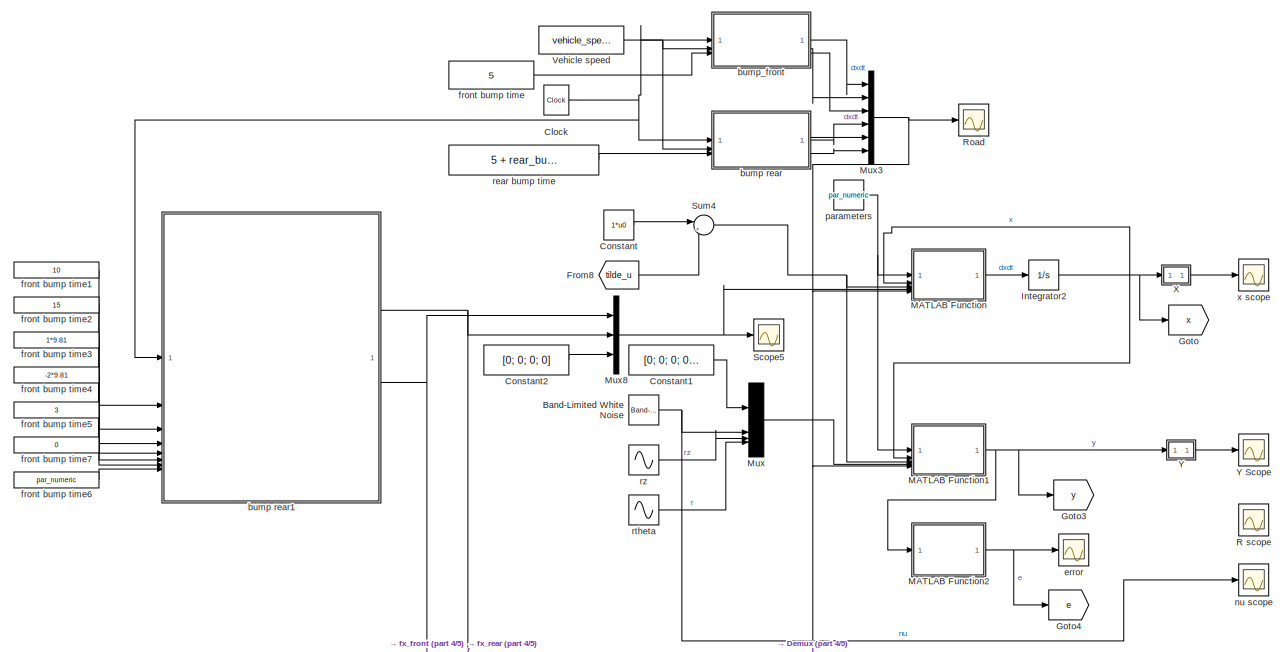
[diagram: root canvas - part 1/5, top left region]
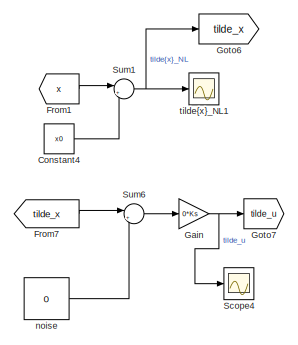
[diagram: root canvas - part 2/5, top right region]
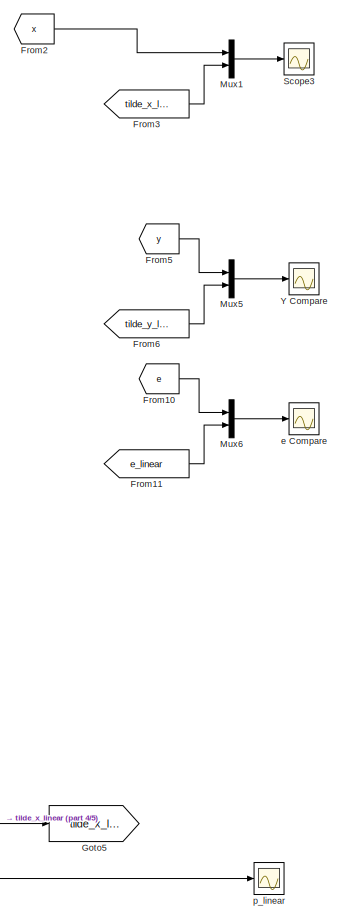
[diagram: root canvas - part 3/5, middle right region]
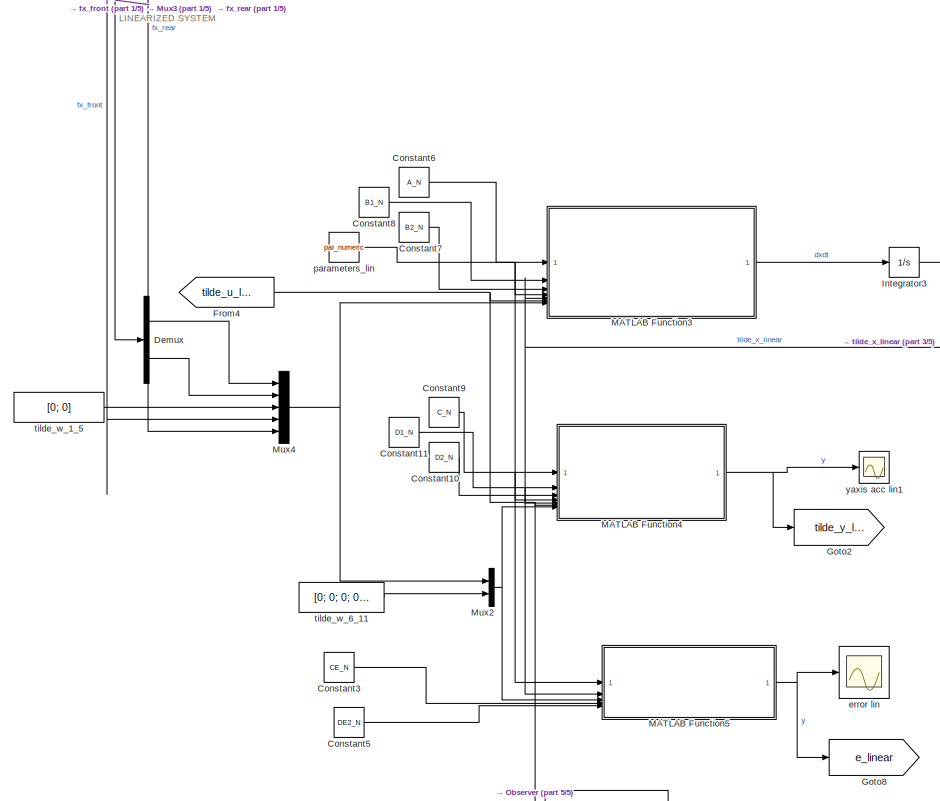
[diagram: root canvas - part 4/5, central region]
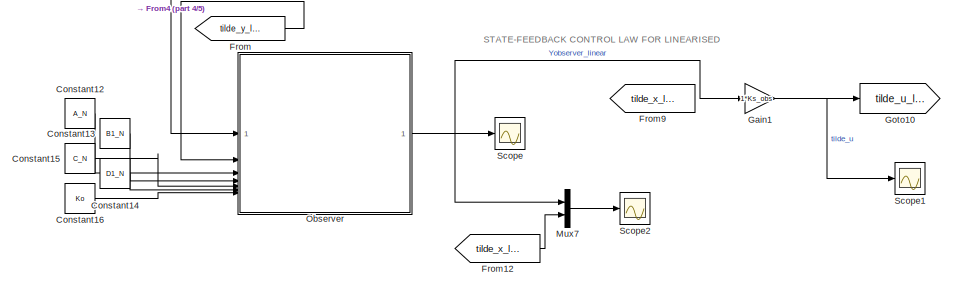
[diagram: root canvas - part 5/5, bottom center region]
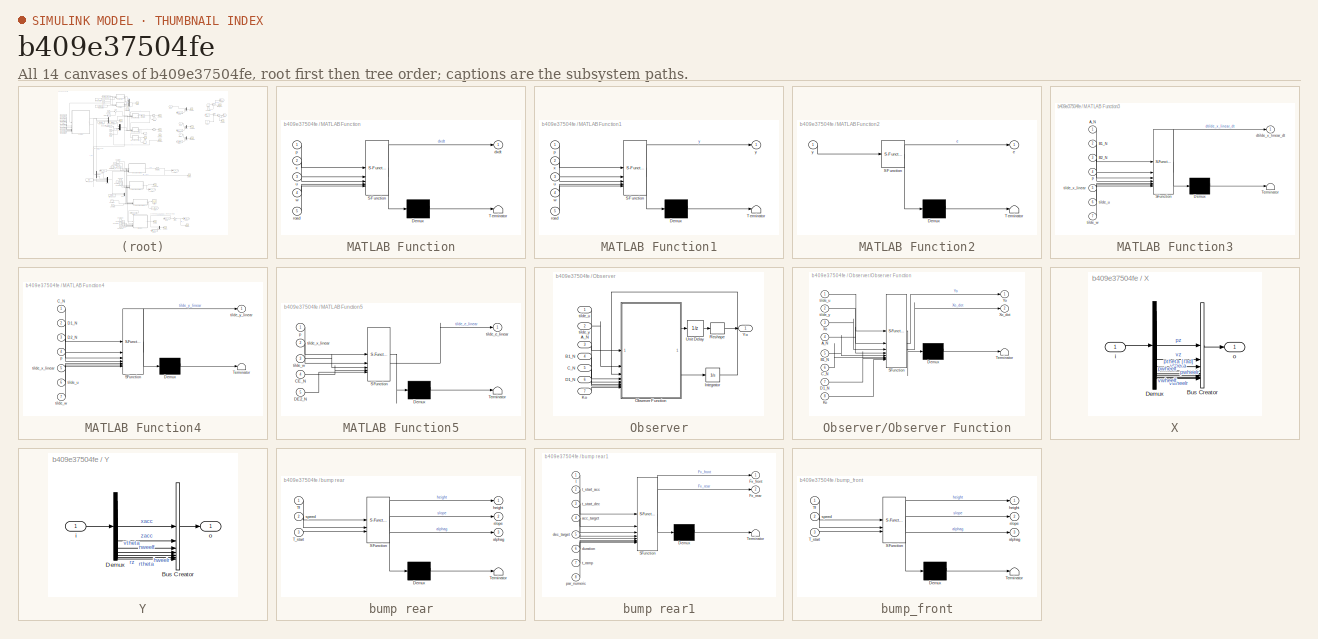
[diagram: thumbnail index - all 14 canvases of the model, root first then tree order]
MODEL slx_b409e37504fe
KIND model
CONFIG AbsTol = auto
CONFIG EnableMultiTasking = off
CONFIG FixedStep = auto
CONFIG MaxStep = auto
CONFIG MinStep = auto
CONFIG RelTol = 1e-3
CONFIG SampleTimeConstraint = Unconstrained
CONFIG SolverName = VariableStepAuto
CONFIG StartTime = 0.0
CONFIG StopTime = 25
BLOCK [Scope]  error lin
  ActiveDisplayYMaximum = 1
  ActiveDisplayYMinimum = -1
  DataLoggingVariableName = ScopeData8
  Floating = off
  GraphicalSettings = {"Style":{"BackgroundColor":[0.12941176470588237,0.12941176470588237,0.12941176470588237],"AxesColor":[0.07058823529411765,0.07058823529411765,0.07058823529411765],"LabelsColor":[0.8509803921568627,0.8509803921568627,0.8509803921568627],"PreserveColors":false,"Visible":[true,true],"LineStyle":["-","-"],"LineWidth":[1.5,1.5],"BarWidth":[0.9,0.9],"LineColor":["auto","auto"],"LineFaceAlpha":[1,1],"Li...<+2038ch>
  MultipleDisplayCache = [{"MaxYLimMag":1,"MaxYLimReal":1,"MinYLimMag":0,"MinYLimReal":-1,"PlotAsMagnitudePhase":false,"ShowGrid":true,"ShowLegend":true,"Title":"%<SignalLabel>","YLabel":""}]
  NumInputPorts = 1
  ScopeFrameLocation = window
  ShowLegend = on
  WasSavedAsWebScope = on
  WindowPosition = [0.000000,32.000000,1920.000000,1017.000000,]
BLOCK [Reference] Band-Limited White Noise  REF=simulink/Sources/Band-Limited
White Noise
  SourceBlock = simulink/Sources/Band-Limited\nWhite Noise
  SourceType = Band-Limited White Noise.
BLOCK [Clock] Clock
  DisplayTime = on
BLOCK [Constant] Constant
  Value = 1*u0
BLOCK [Constant] Constant1
  Value = [0; 0; 0; 0; 0; 0]
BLOCK [Constant] Constant10
  Value = D2_N
BLOCK [Constant] Constant11
  Value = D1_N
BLOCK [Constant] Constant12
  Value = A_N
BLOCK [Constant] Constant13
  Value = B1_N
BLOCK [Constant] Constant14
  Value = D1_N
BLOCK [Constant] Constant15
  Value = C_N
BLOCK [Constant] Constant16
  Value = Ko
BLOCK [Constant] Constant2
  Value = [0; 0; 0; 0]
BLOCK [Constant] Constant3
  Value = CE_N
BLOCK [Constant] Constant4
  Value = x0
BLOCK [Constant] Constant5
  Value = DE2_N
BLOCK [Constant] Constant6
  Value = A_N
BLOCK [Constant] Constant7
  Value = B2_N
BLOCK [Constant] Constant8
  Value = B1_N
BLOCK [Constant] Constant9
  Value = C_N
BLOCK [Demux] Demux
  Outputs = 6
BLOCK [From] From
  GotoTag = tilde_y_linear
BLOCK [From] From1
  GotoTag = x
BLOCK [From] From10
  GotoTag = e
BLOCK [From] From11
  GotoTag = e_linear
BLOCK [From] From12
  GotoTag = tilde_x_linear
BLOCK [From] From2
  GotoTag = x
BLOCK [From] From3
  GotoTag = tilde_x_linear
BLOCK [From] From4
  GotoTag = tilde_u_linear
BLOCK [From] From5
  GotoTag = y
BLOCK [From] From6
  GotoTag = tilde_y_linear
BLOCK [From] From7
  GotoTag = tilde_x
BLOCK [From] From8
  GotoTag = tilde_u
BLOCK [From] From9
  GotoTag = tilde_x_linear
BLOCK [Gain] Gain
  Gain = 0*Ks
  Multiplication = Matrix(K*u)
BLOCK [Gain] Gain1
  Gain = 1*Ks_obs
  Multiplication = Matrix(K*u)
BLOCK [Goto] Goto
  GotoTag = x
BLOCK [Goto] Goto10
  GotoTag = tilde_u_linear
BLOCK [Goto] Goto2
  GotoTag = tilde_y_linear
BLOCK [Goto] Goto3
  GotoTag = y
BLOCK [Goto] Goto4
  GotoTag = e
BLOCK [Goto] Goto5
  GotoTag = tilde_x_linear
BLOCK [Goto] Goto6
  GotoTag = tilde_x
BLOCK [Goto] Goto7
  GotoTag = tilde_u
BLOCK [Goto] Goto8
  GotoTag = e_linear
BLOCK [Integrator] Integrator2
  InitialCondition = x0
BLOCK [Integrator] Integrator3
  InitialCondition = x0_lin
BLOCK [SubSystem] MATLAB Function
  ErrorFcn = Stateflow.Translate.translate
  PermitHierarchicalResolution = ExplicitOnly
  SFBlockType = MATLAB Function
  TreatAsAtomicUnit = on
BLOCK [Demux] MATLAB Function/ Demux 
  Outputs = 1
BLOCK [S-Function] MATLAB Function/ SFunction 
  EnableBusSupport = off
  FunctionName = sf_sfun
  PortCounts = [5 2]
  SFcnIsStateOwnerBlock = off
  SFunctionDeploymentMode = off
  Tag = Stateflow S-Function 2
BLOCK [Terminator] MATLAB Function/ Terminator 
BLOCK [Outport] MATLAB Function/dxdt
BLOCK [Inport] MATLAB Function/p
BLOCK [Inport] MATLAB Function/road
  Port = 5
BLOCK [Inport] MATLAB Function/u
  Port = 3
BLOCK [Inport] MATLAB Function/w
  Port = 4
BLOCK [Inport] MATLAB Function/x
  Port = 2
BLOCK [SubSystem] MATLAB Function1
  ErrorFcn = Stateflow.Translate.translate
  PermitHierarchicalResolution = ExplicitOnly
  SFBlockType = MATLAB Function
  TreatAsAtomicUnit = on
BLOCK [Demux] MATLAB Function1/ Demux 
  Outputs = 1
BLOCK [S-Function] MATLAB Function1/ SFunction 
  EnableBusSupport = off
  FunctionName = sf_sfun
  PortCounts = [5 2]
  SFcnIsStateOwnerBlock = off
  SFunctionDeploymentMode = off
  Tag = Stateflow S-Function 1
BLOCK [Terminator] MATLAB Function1/ Terminator 
BLOCK [Inport] MATLAB Function1/p
BLOCK [Inport] MATLAB Function1/road
  Port = 5
BLOCK [Inport] MATLAB Function1/u
  Port = 3
BLOCK [Inport] MATLAB Function1/w
  Port = 4
BLOCK [Inport] MATLAB Function1/x
  Port = 2
BLOCK [Outport] MATLAB Function1/y
BLOCK [SubSystem] MATLAB Function2
  ErrorFcn = Stateflow.Translate.translate
  PermitHierarchicalResolution = ExplicitOnly
  SFBlockType = MATLAB Function
  TreatAsAtomicUnit = on
BLOCK [Demux] MATLAB Function2/ Demux 
  Outputs = 1
BLOCK [S-Function] MATLAB Function2/ SFunction 
  EnableBusSupport = off
  FunctionName = sf_sfun
  PortCounts = [1 2]
  SFcnIsStateOwnerBlock = off
  SFunctionDeploymentMode = off
  Tag = Stateflow S-Function 3
BLOCK [Terminator] MATLAB Function2/ Terminator 
BLOCK [Outport] MATLAB Function2/e
BLOCK [Inport] MATLAB Function2/y
BLOCK [SubSystem] MATLAB Function3
  ErrorFcn = Stateflow.Translate.translate
  PermitHierarchicalResolution = ExplicitOnly
  SFBlockType = MATLAB Function
  TreatAsAtomicUnit = on
BLOCK [Demux] MATLAB Function3/ Demux 
  Outputs = 1
BLOCK [S-Function] MATLAB Function3/ SFunction 
  EnableBusSupport = off
  FunctionName = sf_sfun
  PortCounts = [7 2]
  SFcnIsStateOwnerBlock = off
  SFunctionDeploymentMode = off
  Tag = Stateflow S-Function 4
BLOCK [Terminator] MATLAB Function3/ Terminator 
BLOCK [Inport] MATLAB Function3/A_N
BLOCK [Inport] MATLAB Function3/B1_N
  Port = 2
BLOCK [Inport] MATLAB Function3/B2_N
  Port = 3
BLOCK [Outport] MATLAB Function3/dtilde_x_linear_dt
BLOCK [Inport] MATLAB Function3/p
  Port = 4
BLOCK [Inport] MATLAB Function3/tilde_u
  Port = 6
BLOCK [Inport] MATLAB Function3/tilde_w
  Port = 7
BLOCK [Inport] MATLAB Function3/tilde_x_linear
  Port = 5
BLOCK [SubSystem] MATLAB Function4
  ErrorFcn = Stateflow.Translate.translate
  PermitHierarchicalResolution = ExplicitOnly
  SFBlockType = MATLAB Function
  TreatAsAtomicUnit = on
BLOCK [Demux] MATLAB Function4/ Demux 
  Outputs = 1
BLOCK [S-Function] MATLAB Function4/ SFunction 
  EnableBusSupport = off
  FunctionName = sf_sfun
  PortCounts = [7 2]
  SFcnIsStateOwnerBlock = off
  SFunctionDeploymentMode = off
  Tag = Stateflow S-Function 5
BLOCK [Terminator] MATLAB Function4/ Terminator 
BLOCK [Inport] MATLAB Function4/C_N
BLOCK [Inport] MATLAB Function4/D1_N
  Port = 2
BLOCK [Inport] MATLAB Function4/D2_N
  Port = 3
BLOCK [Inport] MATLAB Function4/p
  Port = 4
BLOCK [Inport] MATLAB Function4/tilde_u
  Port = 6
BLOCK [Inport] MATLAB Function4/tilde_w
  Port = 7
BLOCK [Inport] MATLAB Function4/tilde_x_linear
  Port = 5
BLOCK [Outport] MATLAB Function4/tilde_y_linear
BLOCK [SubSystem] MATLAB Function5
  ErrorFcn = Stateflow.Translate.translate
  PermitHierarchicalResolution = ExplicitOnly
  SFBlockType = MATLAB Function
  TreatAsAtomicUnit = on
BLOCK [Demux] MATLAB Function5/ Demux 
  Outputs = 1
BLOCK [S-Function] MATLAB Function5/ SFunction 
  EnableBusSupport = off
  FunctionName = sf_sfun
  PortCounts = [5 2]
  SFcnIsStateOwnerBlock = off
  SFunctionDeploymentMode = off
  Tag = Stateflow S-Function 6
BLOCK [Terminator] MATLAB Function5/ Terminator 
BLOCK [Inport] MATLAB Function5/CE_N
  Port = 4
BLOCK [Inport] MATLAB Function5/DE2_N
  Port = 5
BLOCK [Inport] MATLAB Function5/p
BLOCK [Outport] MATLAB Function5/tilde_e_linear
BLOCK [Inport] MATLAB Function5/tilde_w
  Port = 3
BLOCK [Inport] MATLAB Function5/tilde_x_linear
  Port = 2
BLOCK [Mux] Mux
  DisplayOption = bar
BLOCK [Mux] Mux1
  DisplayOption = bar
  Inputs = 2
BLOCK [Mux] Mux2
  DisplayOption = bar
  Inputs = 2
BLOCK [Mux] Mux3
  DisplayOption = bar
  Inputs = 6
BLOCK [Mux] Mux4
  DisplayOption = bar
  Inputs = 5
BLOCK [Mux] Mux5
  DisplayOption = bar
  Inputs = 2
BLOCK [Mux] Mux6
  DisplayOption = bar
  Inputs = 2
BLOCK [Mux] Mux7
  DisplayOption = bar
  Inputs = 2
BLOCK [Mux] Mux8
  DisplayOption = bar
  Inputs = 3
BLOCK [SubSystem] Observer
BLOCK [Inport] Observer/A_N
  NameLocation = left
  Port = 3
BLOCK [Inport] Observer/B1_N
  NameLocation = left
  Port = 4
BLOCK [Inport] Observer/C_N
  NameLocation = left
  Port = 5
BLOCK [Inport] Observer/D1_N
  NameLocation = left
  Port = 6
BLOCK [Integrator] Observer/Integrator
  InitialCondition = x0_lin
BLOCK [Inport] Observer/Ko
  NameLocation = left
  Port = 7
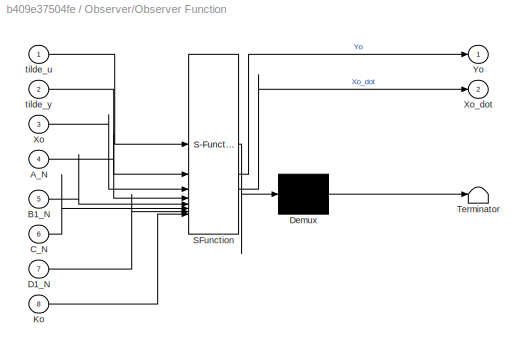
BLOCK [SubSystem] Observer/Observer Function
  ErrorFcn = Stateflow.Translate.translate
  PermitHierarchicalResolution = ExplicitOnly
  SFBlockType = MATLAB Function
  TreatAsAtomicUnit = on
BLOCK [Demux] Observer/Observer Function/ Demux 
  Outputs = 1
BLOCK [S-Function] Observer/Observer Function/ SFunction 
  EnableBusSupport = off
  FunctionName = sf_sfun
  PortCounts = [8 3]
  SFcnIsStateOwnerBlock = off
  SFunctionDeploymentMode = off
  Tag = Stateflow S-Function 9
BLOCK [Terminator] Observer/Observer Function/ Terminator 
BLOCK [Inport] Observer/Observer Function/A_N
  Port = 4
BLOCK [Inport] Observer/Observer Function/B1_N
  Port = 5
BLOCK [Inport] Observer/Observer Function/C_N
  Port = 6
BLOCK [Inport] Observer/Observer Function/D1_N
  Port = 7
BLOCK [Inport] Observer/Observer Function/Ko
  Port = 8
BLOCK [Inport] Observer/Observer Function/Xo
  Port = 3
BLOCK [Outport] Observer/Observer Function/Xo_dot
  Port = 2
BLOCK [Outport] Observer/Observer Function/Yo
BLOCK [Inport] Observer/Observer Function/tilde_u
BLOCK [Inport] Observer/Observer Function/tilde_y
  Port = 2
BLOCK [Reshape] Observer/Reshape
  OutputDimensionality = Customize
  OutputDimensions = [12]
BLOCK [UnitDelay] Observer/Unit Delay
  HasFrameUpgradeWarning = on
  SampleTime = 0.01
BLOCK [Outport] Observer/Yo
BLOCK [Inport] Observer/tilde_u
BLOCK [Inport] Observer/tilde_y
  Port = 2
BLOCK [Scope] R scope
  ActiveDisplayYMaximum = 1
  ActiveDisplayYMinimum = -1
  DataLoggingVariableName = ScopeData5
  Floating = off
  GraphicalSettings = {"Style":{"BackgroundColor":[0.12941176470588237,0.12941176470588237,0.12941176470588237],"AxesColor":[0.07058823529411765,0.07058823529411765,0.07058823529411765],"LabelsColor":[0.8509803921568627,0.8509803921568627,0.8509803921568627],"PreserveColors":false,"Visible":[true,true],"LineStyle":["-","-"],"LineWidth":[1.5,1.5],"BarWidth":[0.9,0.9],"LineColor":["auto","auto"],"LineFaceAlpha":[1,1],"Li...<+2005ch>
  MultipleDisplayCache = [{"MaxYLimMag":1,"MaxYLimReal":1,"MinYLimMag":0,"MinYLimReal":-1,"PlotAsMagnitudePhase":false,"ShowGrid":true,"ShowLegend":true,"Title":"%<SignalLabel>","YLabel":""}]
  NumInputPorts = 1
  ScopeFrameLocation = window
  ShowLegend = on
  WasSavedAsWebScope = on
  WindowPosition = [0.000000,32.000000,1920.000000,1017.000000,]
BLOCK [Scope] Road
  ActiveDisplayYMaximum = 0.39269908169872414
  ActiveDisplayYMinimum = -0.39269908169872414
  DataLoggingVariableName = ScopeData1
  Floating = off
  GraphicalSettings = {"Style":{"BackgroundColor":[0.12941176470588237,0.12941176470588237,0.12941176470588237],"AxesColor":[0.07058823529411765,0.07058823529411765,0.07058823529411765],"LabelsColor":[0.8509803921568627,0.8509803921568627,0.8509803921568627],"PreserveColors":false,"Visible":[true,false,false,true,false,false],"LineStyle":["-","-","-","-","-","-"],"LineWidth":[1.5,1.5,1.5,1.5,1.5,1.5],"BarWidth":[0.9,0....<+2622ch>
  MultipleDisplayCache = [{"MaxYLimMag":0.39269908169872414,"MaxYLimReal":0.39269908169872414,"MinYLimMag":0,"MinYLimReal":-0.39269908169872414,"PlotAsMagnitudePhase":false,"ShowGrid":true,"ShowLegend":true,"Title":"%<SignalLabel>","YLabel":""}]
  NumInputPorts = 1
  ScopeFrameLocation = window
  ShowLegend = on
  WasSavedAsWebScope = on
  WindowPosition = [0.000000,32.000000,1920.000000,1017.000000,]
BLOCK [Scope] Scope
  ActiveDisplayYMaximum = 0.44831124007175333
  ActiveDisplayYMinimum = -0.77419611103680575
  DataLoggingVariableName = ScopeData13
  Floating = off
  GraphicalSettings = {"Style":{"BackgroundColor":[0.12941176470588237,0.12941176470588237,0.12941176470588237],"AxesColor":[0.07058823529411765,0.07058823529411765,0.07058823529411765],"LabelsColor":[0.8509803921568627,0.8509803921568627,0.8509803921568627],"PreserveColors":false,"Visible":[true,false,true,false,false,false,false,false,false,false,false,false],"LineStyle":["-","-","-","-","-","-","-","-","-","-","-","...<+3515ch>
  MultipleDisplayCache = [{"MaxYLimMag":0.77419611103680575,"MaxYLimReal":0.44831124007175333,"MinYLimMag":0,"MinYLimReal":-0.77419611103680575,"PlotAsMagnitudePhase":false,"ShowGrid":true,"ShowLegend":true,"Title":"%<SignalLabel>","YLabel":""}]
  NumInputPorts = 1
  ScopeFrameLocation = window
  ShowLegend = on
  WasSavedAsWebScope = on
  WindowPosition = [0.000000,32.000000,1920.000000,1017.000000,]
BLOCK [Scope] Scope1
  ActiveDisplayYMaximum = 127134.62422776494
  ActiveDisplayYMinimum = -73646.15665947643
  DataLoggingVariableName = ScopeData14
  Floating = off
  GraphicalSettings = {"Style":{"BackgroundColor":[0.12941176470588237,0.12941176470588237,0.12941176470588237],"AxesColor":[0.07058823529411765,0.07058823529411765,0.07058823529411765],"LabelsColor":[0.8509803921568627,0.8509803921568627,0.8509803921568627],"PreserveColors":false,"Visible":[true,true],"LineStyle":["-","-"],"LineWidth":[1.5,1.5],"BarWidth":[0.9,0.9],"LineColor":["auto","auto"],"LineFaceAlpha":[1,1],"Li...<+2114ch>
  MultipleDisplayCache = [{"MaxYLimMag":127134.62422776494,"MaxYLimReal":127134.62422776494,"MinYLimMag":0,"MinYLimReal":-73646.15665947643,"PlotAsMagnitudePhase":false,"ShowGrid":true,"ShowLegend":true,"Title":"%<SignalLabel>","YLabel":""}]
  NumInputPorts = 1
  ScopeFrameLocation = window
  ShowLegend = on
  WasSavedAsWebScope = on
  WindowPosition = [354.000000,-59.000000,958.000000,1008.000000,]
BLOCK [Scope] Scope2
  ActiveDisplayYMaximum = 1
  ActiveDisplayYMinimum = -1
  DataLoggingVariableName = ScopeData15
  Floating = off
  GraphicalSettings = {"Style":{"BackgroundColor":[0.12941176470588237,0.12941176470588237,0.12941176470588237],"AxesColor":[0.07058823529411765,0.07058823529411765,0.07058823529411765],"LabelsColor":[0.8509803921568627,0.8509803921568627,0.8509803921568627],"PreserveColors":false,"Visible":[true,true,false,false,false,false,false,false,false,false,false,false,false],"LineStyle":["-","-","-","-","-","-","-","-","-","-"...<+3504ch>
  MultipleDisplayCache = [{"MaxYLimMag":1,"MaxYLimReal":1,"MinYLimMag":0,"MinYLimReal":-1,"PlotAsMagnitudePhase":false,"ShowGrid":true,"ShowLegend":true,"Title":"%<SignalLabel>","YLabel":""}]
  NumInputPorts = 1
  ScopeFrameLocation = window
  ShowLegend = on
  WasSavedAsWebScope = on
  WindowPosition = [0.000000,32.000000,1920.000000,1017.000000,]
BLOCK [Scope] Scope3
  ActiveDisplayYMaximum = 0.069183222556784107
  ActiveDisplayYMinimum = -0.11890530130314077
  Floating = off
  GraphicalSettings = {"Style":{"BackgroundColor":[0.12941176470588237,0.12941176470588237,0.12941176470588237],"AxesColor":[0.07058823529411765,0.07058823529411765,0.07058823529411765],"LabelsColor":[0.8509803921568627,0.8509803921568627,0.8509803921568627],"PreserveColors":false,"Visible":[false,false,true,false,false,false,false,false,true,false,true,false,false,false,false,false,false,false,false,false],"LineStyle"...<+4347ch>
  MultipleDisplayCache = [{"MaxYLimMag":0.11890530130314077,"MaxYLimReal":0.069183222556784107,"MinYLimMag":0,"MinYLimReal":-0.11890530130314077,"PlotAsMagnitudePhase":false,"ShowGrid":true,"ShowLegend":true,"Title":"%<SignalLabel>","YLabel":""}]
  NumInputPorts = 1
  ScopeFrameLocation = window
  ShowLegend = on
  Visible = on
  WasSavedAsWebScope = on
  WindowPosition = [0.000000,32.000000,1920.000000,1017.000000,]
BLOCK [Scope] Scope4
  ActiveDisplayYMaximum = 1
  ActiveDisplayYMinimum = -1
  DataLoggingVariableName = ScopeData16
  Floating = off
  GraphicalSettings = {"Style":{"BackgroundColor":[0.12941176470588237,0.12941176470588237,0.12941176470588237],"AxesColor":[0.07058823529411765,0.07058823529411765,0.07058823529411765],"LabelsColor":[0.8509803921568627,0.8509803921568627,0.8509803921568627],"PreserveColors":false,"Visible":[true,true],"LineStyle":["-","-"],"LineWidth":[1.5,1.5],"BarWidth":[0.9,0.9],"LineColor":["auto","auto"],"LineFaceAlpha":[1,1],"Li...<+2019ch>
  MultipleDisplayCache = [{"MaxYLimMag":1,"MaxYLimReal":1,"MinYLimMag":0,"MinYLimReal":-1,"PlotAsMagnitudePhase":false,"ShowGrid":true,"ShowLegend":false,"Title":"%<SignalLabel>","YLabel":""}]
  NumInputPorts = 1
  ScopeFrameLocation = window
  WasSavedAsWebScope = on
  WindowPosition = [1.000000,41.000000,1920.000000,1017.000000,]
BLOCK [Scope] Scope5
  ActiveDisplayYMaximum = 15634.6875
  ActiveDisplayYMinimum = -18087.1875
  DataLoggingVariableName = ScopeData17
  Floating = off
  GraphicalSettings = {"Style":{"BackgroundColor":[0.12941176470588237,0.12941176470588237,0.12941176470588237],"AxesColor":[0.07058823529411765,0.07058823529411765,0.07058823529411765],"LabelsColor":[0.8509803921568627,0.8509803921568627,0.8509803921568627],"PreserveColors":false,"Visible":[true,true,true,true,true,true],"LineStyle":["-","-","-","-","-","-"],"LineWidth":[1.5,1.5,1.5,1.5,1.5,1.5],"BarWidth":[0.9,0.9,0....<+2540ch>
  MultipleDisplayCache = [{"MaxYLimMag":18087.1875,"MaxYLimReal":15634.6875,"MinYLimMag":0,"MinYLimReal":-18087.1875,"PlotAsMagnitudePhase":false,"ShowGrid":true,"ShowLegend":true,"Title":"%<SignalLabel>","YLabel":""}]
  NumInputPorts = 1
  ScopeFrameLocation = window
  ShowLegend = on
  WasSavedAsWebScope = on
  WindowPosition = [1.000000,41.000000,1920.000000,1017.000000,]
BLOCK [Sum] Sum1
  Inputs = |+-
BLOCK [Sum] Sum4
  Inputs = |+-
BLOCK [Sum] Sum6
  Inputs = |++
BLOCK [Constant] Vehicle speed
  Value = vehicle_speed
  VectorParams1D = off
BLOCK [SubSystem] X
BLOCK [BusCreator] X/Bus Creator
  DisplayOption = bar
  InheritFromInputs = on
  Inputs = 8
BLOCK [Demux] X/Demux
  Outputs = 8
BLOCK [Inport] X/i
BLOCK [Outport] X/o
BLOCK [SubSystem] Y
BLOCK [Scope] Y Compare
  ActiveDisplayYMaximum = 22.15478865739642
  ActiveDisplayYMinimum = -9.06978679583773
  DataLoggingVariableName = ScopeData11
  Floating = off
  GraphicalSettings = {"Style":{"BackgroundColor":[0.12941176470588237,0.12941176470588237,0.12941176470588237],"AxesColor":[0.07058823529411765,0.07058823529411765,0.07058823529411765],"LabelsColor":[0.8509803921568627,0.8509803921568627,0.8509803921568627],"PreserveColors":false,"Visible":[false,true,false,false,false,false,false,false,true,false,false,false],"LineStyle":["-","-","-","-","-","-","-","-","-","-","-","...<+3179ch>
  MultipleDisplayCache = [{"MaxYLimMag":22.15478865739642,"MaxYLimReal":22.15478865739642,"MinYLimMag":0,"MinYLimReal":-9.06978679583773,"PlotAsMagnitudePhase":false,"ShowGrid":true,"ShowLegend":true,"Title":"%<SignalLabel>","YLabel":""}]
  NumInputPorts = 1
  ScopeFrameLocation = window
  ShowLegend = on
  WasSavedAsWebScope = on
  WindowPosition = [1.000000,41.000000,1920.000000,1017.000000,]
BLOCK [Scope] Y Scope
  ActiveDisplayYMaximum = 1
  ActiveDisplayYMinimum = -1
  DataLoggingVariableName = ScopeData3
  Floating = off
  GraphicalSettings = {"Style":{"BackgroundColor":[0.12941176470588237,0.12941176470588237,0.12941176470588237],"AxesColor":[0.07058823529411765,0.07058823529411765,0.07058823529411765],"LabelsColor":[0.8509803921568627,0.8509803921568627,0.8509803921568627],"PreserveColors":false,"Visible":[true,true,true,true,true,true,true],"LineStyle":["-","-","-","-","-","-","-"],"LineWidth":[1.5,1.5,1.5,1.5,1.5,1.5,1.5],"BarWidth...<+2660ch>
  MultipleDisplayCache = [{"MaxYLimMag":1,"MaxYLimReal":1,"MinYLimMag":0,"MinYLimReal":-1,"PlotAsMagnitudePhase":false,"ShowGrid":true,"ShowLegend":true,"Title":"%<SignalLabel>","YLabel":""}]
  NumInputPorts = 1
  ScopeFrameLocation = window
  ShowLegend = on
  WasSavedAsWebScope = on
  WindowPosition = [0.000000,32.000000,1920.000000,1017.000000,]
BLOCK [BusCreator] Y/Bus Creator
  DisplayOption = bar
  InheritFromInputs = on
  Inputs = 7
BLOCK [Demux] Y/Demux
  Outputs = 7
BLOCK [Inport] Y/i
BLOCK [Outport] Y/o
BLOCK [SubSystem] bump rear
  ErrorFcn = Stateflow.Translate.translate
  PermitHierarchicalResolution = ExplicitOnly
  SFBlockType = MATLAB Function
  TreatAsAtomicUnit = on
BLOCK [Demux] bump rear/ Demux 
  Outputs = 1
BLOCK [S-Function] bump rear/ SFunction 
  EnableBusSupport = off
  FunctionName = sf_sfun
  PortCounts = [3 4]
  SFcnIsStateOwnerBlock = off
  SFunctionDeploymentMode = off
  Tag = Stateflow S-Function 7
BLOCK [Terminator] bump rear/ Terminator 
BLOCK [Inport] bump rear/T_start
  Port = 3
BLOCK [Inport] bump rear/Tf
BLOCK [Outport] bump rear/alphag
  Port = 3
BLOCK [Outport] bump rear/height
BLOCK [Outport] bump rear/slope
  Port = 2
BLOCK [Inport] bump rear/speed
  Port = 2
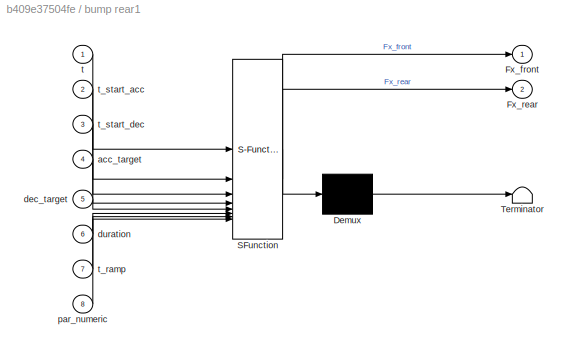
BLOCK [SubSystem] bump rear1
  ErrorFcn = Stateflow.Translate.translate
  PermitHierarchicalResolution = ExplicitOnly
  SFBlockType = MATLAB Function
  TreatAsAtomicUnit = on
BLOCK [Demux] bump rear1/ Demux 
  Outputs = 1
BLOCK [S-Function] bump rear1/ SFunction 
  EnableBusSupport = off
  FunctionName = sf_sfun
  PortCounts = [8 3]
  SFcnIsStateOwnerBlock = off
  SFunctionDeploymentMode = off
  Tag = Stateflow S-Function 10
BLOCK [Terminator] bump rear1/ Terminator 
BLOCK [Outport] bump rear1/Fx_front
BLOCK [Outport] bump rear1/Fx_rear
  Port = 2
BLOCK [Inport] bump rear1/acc_target
  Port = 4
BLOCK [Inport] bump rear1/dec_target
  Port = 5
BLOCK [Inport] bump rear1/duration
  Port = 6
BLOCK [Inport] bump rear1/par_numeric
  Port = 8
BLOCK [Inport] bump rear1/t
BLOCK [Inport] bump rear1/t_ramp
  Port = 7
BLOCK [Inport] bump rear1/t_start_acc
  Port = 2
BLOCK [Inport] bump rear1/t_start_dec
  Port = 3
BLOCK [SubSystem] bump_front
  ErrorFcn = Stateflow.Translate.translate
  PermitHierarchicalResolution = ExplicitOnly
  SFBlockType = MATLAB Function
  TreatAsAtomicUnit = on
BLOCK [Demux] bump_front/ Demux 
  Outputs = 1
BLOCK [S-Function] bump_front/ SFunction 
  EnableBusSupport = off
  FunctionName = sf_sfun
  PortCounts = [3 4]
  SFcnIsStateOwnerBlock = off
  SFunctionDeploymentMode = off
  Tag = Stateflow S-Function 8
BLOCK [Terminator] bump_front/ Terminator 
BLOCK [Inport] bump_front/T_start
  Port = 3
BLOCK [Inport] bump_front/Tf
BLOCK [Outport] bump_front/alphag
  Port = 3
BLOCK [Outport] bump_front/height
BLOCK [Outport] bump_front/slope
  Port = 2
BLOCK [Inport] bump_front/speed
  Port = 2
BLOCK [Scope] e Compare
  ActiveDisplayYMaximum = 0.34771769859425983
  ActiveDisplayYMinimum = -0.3208309292462625
  DataLoggingVariableName = ScopeData12
  Floating = off
  GraphicalSettings = {"Style":{"BackgroundColor":[0.12941176470588237,0.12941176470588237,0.12941176470588237],"AxesColor":[0.07058823529411765,0.07058823529411765,0.07058823529411765],"LabelsColor":[0.8509803921568627,0.8509803921568627,0.8509803921568627],"PreserveColors":false,"Visible":[true,true,true,true],"LineStyle":["-","-","-","-"],"LineWidth":[1.5,1.5,1.5,1.5],"BarWidth":[0.9,0.9,0.9,0.9],"LineColor":["auto"...<+2326ch>
  MultipleDisplayCache = [{"MaxYLimMag":0.34771769859425983,"MaxYLimReal":0.34771769859425983,"MinYLimMag":0,"MinYLimReal":-0.3208309292462625,"PlotAsMagnitudePhase":false,"ShowGrid":true,"ShowLegend":true,"Title":"%<SignalLabel>","YLabel":""}]
  NumInputPorts = 1
  ScopeFrameLocation = window
  ShowLegend = on
  WasSavedAsWebScope = on
  WindowPosition = [0.000000,32.000000,1920.000000,1017.000000,]
BLOCK [Scope] error 
  ActiveDisplayYMaximum = 1
  ActiveDisplayYMinimum = -1
  DataLoggingVariableName = ScopeData6
  Floating = off
  GraphicalSettings = {"Style":{"BackgroundColor":[0.12941176470588237,0.12941176470588237,0.12941176470588237],"AxesColor":[0.07058823529411765,0.07058823529411765,0.07058823529411765],"LabelsColor":[0.8509803921568627,0.8509803921568627,0.8509803921568627],"PreserveColors":false,"Visible":[true,true],"LineStyle":["-","-"],"LineWidth":[1.5,1.5],"BarWidth":[0.9,0.9],"LineColor":["auto","auto"],"LineFaceAlpha":[1,1],"Li...<+2101ch>
  MultipleDisplayCache = [{"MaxYLimMag":1,"MaxYLimReal":1,"MinYLimMag":0,"MinYLimReal":-1,"PlotAsMagnitudePhase":false,"ShowGrid":true,"ShowLegend":true,"Title":"%<SignalLabel>","YLabel":""}]
  NumInputPorts = 1
  ScopeFrameLocation = window
  ShowLegend = on
  WasSavedAsWebScope = on
  WindowPosition = [0.000000,32.000000,1920.000000,1017.000000,]
BLOCK [Constant] front bump time
  Value = 5
  VectorParams1D = off
BLOCK [Constant] front bump time1
  Value = 10
  VectorParams1D = off
BLOCK [Constant] front bump time2
  Value = 15
  VectorParams1D = off
BLOCK [Constant] front bump time3
  Value = 1*9.81
  VectorParams1D = off
BLOCK [Constant] front bump time4
  Value = -2*9.81
  VectorParams1D = off
BLOCK [Constant] front bump time5
  Value = 3
  VectorParams1D = off
BLOCK [Constant] front bump time6
  Value = par_numeric
  VectorParams1D = off
BLOCK [Constant] front bump time7
  Value = 0
  VectorParams1D = off
BLOCK [Constant] noise
  Value = 0
BLOCK [Scope] nu scope
  DataLoggingVariableName = ScopeData7
  Floating = off
  GraphicalSettings = {"GraphicalSettings":{"LegacySettings":true,"Style":{"Style":{"PlotType":"Auto"}}}}
  NumInputPorts = 1
  WasSavedAsWebScope = on
BLOCK [Scope] p_linear
  ActiveDisplayYMaximum = 0.066646245320476569
  ActiveDisplayYMinimum = -0.03749851288711617
  DataLoggingVariableName = ScopeData9
  Floating = off
  GraphicalSettings = {"Style":{"BackgroundColor":[0.12941176470588237,0.12941176470588237,0.12941176470588237],"AxesColor":[0.07058823529411765,0.07058823529411765,0.07058823529411765],"LabelsColor":[0.8509803921568627,0.8509803921568627,0.8509803921568627],"PreserveColors":false,"Visible":[true,false,true,false,false,false,false,false,false,false,false,false],"LineStyle":["-","-","-","-","-","-","-","-","-","-","-","...<+3470ch>
  MultipleDisplayCache = [{"MaxYLimMag":0.066646245320476569,"MaxYLimReal":0.066646245320476569,"MinYLimMag":0,"MinYLimReal":-0.03749851288711617,"PlotAsMagnitudePhase":false,"ShowGrid":true,"ShowLegend":true,"Title":"%<SignalLabel>","YLabel":""}]
  NumInputPorts = 1
  ScopeFrameLocation = window
  ShowLegend = on
  WasSavedAsWebScope = on
  WindowPosition = [1.000000,49.000000,2194.000000,1163.000000,]
BLOCK [Constant] parameters
  Value = par_numeric
  VectorParams1D = off
BLOCK [Constant] parameters_lin
  Value = par_numeric
BLOCK [Constant] rear bump time
  Value = 5 + rear_bump_time_delay
  VectorParams1D = off
BLOCK [Sin] rtheta
  Amplitude = 0
  Frequency = 0
  SampleTime = 0
BLOCK [Sin] rz
  Amplitude = 0
  Frequency = 0
  SampleTime = 0
BLOCK [Constant] tilde_w_1_5
  Value = [0; 0]
BLOCK [Constant] tilde_w_6_11
  Value = [0; 0; 0; 0; 0; 0; 0]
BLOCK [Scope] tilde{x}_NL1
  ActiveDisplayYMaximum = 2.55492
  ActiveDisplayYMinimum = -4.93552
  DataLoggingVariableName = ScopeData4
  Floating = off
  GraphicalSettings = {"Style":{"BackgroundColor":[0.12941176470588237,0.12941176470588237,0.12941176470588237],"AxesColor":[0.07058823529411765,0.07058823529411765,0.07058823529411765],"LabelsColor":[0.8509803921568627,0.8509803921568627,0.8509803921568627],"PreserveColors":false,"Visible":[true,true,true,true,false,false,true,true],"LineStyle":["-","-","-","-","-","-","-","-"],"LineWidth":[1.5,1.5,1.5,1.5,1.5,1.5,1.5...<+2834ch>
  MultipleDisplayCache = [{"MaxYLimMag":4.93552,"MaxYLimReal":2.55492,"MinYLimMag":0,"MinYLimReal":-4.93552,"PlotAsMagnitudePhase":false,"ShowGrid":true,"ShowLegend":true,"Title":"%<SignalLabel>","YLabel":""}]
  NumInputPorts = 1
  ScopeFrameLocation = window
  ShowLegend = on
  WasSavedAsWebScope = on
  WindowPosition = [1.000000,41.000000,1920.000000,1017.000000,]
BLOCK [Scope] x scope
  ActiveDisplayYMaximum = 0.13842945478834703
  ActiveDisplayYMinimum = -0.070953530518173463
  DataLoggingVariableName = ScopeData2
  Floating = off
  GraphicalSettings = {"Style":{"BackgroundColor":[0.12941176470588237,0.12941176470588237,0.12941176470588237],"AxesColor":[0.07058823529411765,0.07058823529411765,0.07058823529411765],"LabelsColor":[0.8509803921568627,0.8509803921568627,0.8509803921568627],"PreserveColors":false,"Visible":[false,false,true,false,false,false,false,false],"LineStyle":["-","-","-","-","-","-","-","-"],"LineWidth":[1.5,1.5,1.5,1.5,1.5,1....<+2796ch>
  MultipleDisplayCache = [{"MaxYLimMag":0.18820978376494704,"MaxYLimReal":0.13842945478834703,"MinYLimMag":0,"MinYLimReal":-0.070953530518173463,"PlotAsMagnitudePhase":false,"ShowGrid":true,"ShowLegend":true,"Title":"%<SignalLabel>","YLabel":""}]
  NumInputPorts = 1
  ScopeFrameLocation = container
  ShowLegend = on
  WasSavedAsWebScope = on
  WindowPosition = [1.000000,41.000000,1920.000000,1017.000000,]
BLOCK [Scope] yaxis acc lin1
  ActiveDisplayYMaximum = 1
  ActiveDisplayYMinimum = -1
  DataLoggingVariableName = ScopeData10
  Floating = off
  GraphicalSettings = {"Style":{"BackgroundColor":[0.12941176470588237,0.12941176470588237,0.12941176470588237],"AxesColor":[0.07058823529411765,0.07058823529411765,0.07058823529411765],"LabelsColor":[0.8509803921568627,0.8509803921568627,0.8509803921568627],"PreserveColors":false,"Visible":[true,true,true,true,true],"LineStyle":["-","-","-","-","-"],"LineWidth":[1.5,1.5,1.5,1.5,1.5],"BarWidth":[0.9,0.9,0.9,0.9,0.9],"L...<+2433ch>
  MultipleDisplayCache = [{"MaxYLimMag":1,"MaxYLimReal":1,"MinYLimMag":0,"MinYLimReal":-1,"PlotAsMagnitudePhase":false,"ShowGrid":true,"ShowLegend":true,"Title":"%<SignalLabel>","YLabel":""}]
  NumInputPorts = 1
  ScopeFrameLocation = window
  ShowLegend = on
  WasSavedAsWebScope = on
  WindowPosition = [0.000000,32.000000,1920.000000,1017.000000,]
ANNOTATION (root): LINEARIZED SYSTEM
ANNOTATION (root): STATE-FEEDBACK CONTROL LAW FOR LINEARISED
NET Band-Limited White Noise:1 -> Mux:2, nu scope:1
NET Clock:1 -> bump rear1:1, bump rear:1, bump_front:1
LINE Constant10:1 -> MATLAB Function4:3
LINE Constant11:1 -> MATLAB Function4:2
LINE Constant12:1 -> Observer:3
LINE Constant13:1 -> Observer:4
LINE Constant14:1 -> Observer:6
LINE Constant15:1 -> Observer:5
LINE Constant16:1 -> Observer:7
LINE Constant1:1 -> Mux:1
LINE Constant2:1 -> Mux8:3
LINE Constant3:1 -> MATLAB Function5:4
LINE Constant4:1 -> Sum1:2
LINE Constant5:1 -> MATLAB Function5:5
LINE Constant6:1 -> MATLAB Function3:1
LINE Constant7:1 -> MATLAB Function3:3
LINE Constant8:1 -> MATLAB Function3:2
LINE Constant9:1 -> MATLAB Function4:1
LINE Constant:1 -> Sum4:1
LINE Demux:2 -> Mux4:1
LINE Demux:5 -> Mux4:2
LINE From10:1 -> Mux6:1
LINE From11:1 -> Mux6:2
LINE From12:1 -> Mux7:2
LINE From1:1 -> Sum1:1
LINE From2:1 -> Mux1:1
LINE From3:1 -> Mux1:2
NET From4:1 -> MATLAB Function3:6, MATLAB Function4:6, Observer:1
LINE From5:1 -> Mux5:1
LINE From6:1 -> Mux5:2
LINE From7:1 -> Sum6:1
LINE From8:1 -> Sum4:2
LINE From:1 -> Observer:2
NET Gain1:1 -> Goto10:1, Scope1:1
NET Gain:1 -> Goto7:1, Scope4:1
NET Integrator2:1 -> Goto:1, MATLAB Function1:2, MATLAB Function:2, X:1
NET Integrator3:1 -> Goto5:1, MATLAB Function3:5, MATLAB Function4:5, MATLAB Function5:2, p_linear:1
NET MATLAB Function1:1 -> Goto3:1, MATLAB Function2:1, Y:1
NET MATLAB Function2:1 -> Goto4:1, error :1
LINE MATLAB Function3:1 -> Integrator3:1
NET MATLAB Function4:1 -> Goto2:1, yaxis acc lin1:1
NET MATLAB Function5:1 ->  error lin:1, Goto8:1
LINE MATLAB Function:1 -> Integrator2:1
LINE Mux1:1 -> Scope3:1
NET Mux2:1 -> MATLAB Function4:7, MATLAB Function5:3
NET Mux3:1 -> Demux:1, MATLAB Function1:5, MATLAB Function:5, Road:1
NET Mux4:1 -> MATLAB Function3:7, Mux2:1
LINE Mux5:1 -> Y Compare:1
LINE Mux6:1 -> e Compare:1
LINE Mux7:1 -> Scope2:1
NET Mux8:1 -> MATLAB Function:4, Scope5:1
LINE Mux:1 -> MATLAB Function1:4
LINE Observer/A_N:1 -> Observer/Observer Function:4
LINE Observer/B1_N:1 -> Observer/Observer Function:5
LINE Observer/C_N:1 -> Observer/Observer Function:6
LINE Observer/D1_N:1 -> Observer/Observer Function:7
LINE Observer/Integrator:1 -> Observer/Observer Function:3
LINE Observer/Ko:1 -> Observer/Observer Function:8
LINE Observer/Observer Function:1 -> Observer/Unit Delay:1
LINE Observer/Observer Function:2 -> Observer/Integrator:1
LINE Observer/Reshape:1 -> Observer/Yo:1
LINE Observer/Unit Delay:1 -> Observer/Reshape:1
LINE Observer/tilde_u:1 -> Observer/Observer Function:1
LINE Observer/tilde_y:1 -> Observer/Observer Function:2
NET Observer:1 -> Gain1:1, Mux7:1, Scope:1
NET Sum1:1 -> Goto6:1, tilde{x}_NL1:1
NET Sum4:1 -> MATLAB Function1:3, MATLAB Function:3
LINE Sum6:1 -> Gain:1
NET Vehicle speed:1 -> bump rear:2, bump_front:2
LINE X/Bus Creator:1 -> X/o:1
LINE X/Demux:1 -> X/Bus Creator:1
LINE X/Demux:2 -> X/Bus Creator:2
LINE X/Demux:3 -> X/Bus Creator:3
LINE X/Demux:4 -> X/Bus Creator:4
LINE X/Demux:5 -> X/Bus Creator:5
LINE X/Demux:6 -> X/Bus Creator:6
LINE X/Demux:7 -> X/Bus Creator:7
LINE X/Demux:8 -> X/Bus Creator:8
LINE X/i:1 -> X/Demux:1
LINE X:1 -> x scope:1
LINE Y/Bus Creator:1 -> Y/o:1
LINE Y/Demux:1 -> Y/Bus Creator:1
LINE Y/Demux:2 -> Y/Bus Creator:2
LINE Y/Demux:3 -> Y/Bus Creator:3
LINE Y/Demux:4 -> Y/Bus Creator:4
LINE Y/Demux:5 -> Y/Bus Creator:5
LINE Y/Demux:6 -> Y/Bus Creator:6
LINE Y/Demux:7 -> Y/Bus Creator:7
LINE Y/i:1 -> Y/Demux:1
LINE Y:1 -> Y Scope:1
NET bump rear1:1 -> Mux4:4, Mux8:1
NET bump rear1:2 -> Mux4:5, Mux8:2
LINE bump rear:1 -> Mux3:4
LINE bump rear:2 -> Mux3:5
LINE bump rear:3 -> Mux3:6
LINE bump_front:1 -> Mux3:1
LINE bump_front:2 -> Mux3:2
LINE bump_front:3 -> Mux3:3
LINE front bump time1:1 -> bump rear1:2
LINE front bump time2:1 -> bump rear1:3
LINE front bump time3:1 -> bump rear1:4
LINE front bump time4:1 -> bump rear1:5
LINE front bump time5:1 -> bump rear1:6
LINE front bump time6:1 -> bump rear1:8
LINE front bump time7:1 -> bump rear1:7
LINE front bump time:1 -> bump_front:3
LINE noise:1 -> Sum6:2
NET parameters:1 -> MATLAB Function1:1, MATLAB Function:1
NET parameters_lin:1 -> MATLAB Function3:4, MATLAB Function4:4, MATLAB Function5:1
LINE rear bump time:1 -> bump rear:3
LINE rtheta:1 -> Mux:4
LINE rz:1 -> Mux:3
LINE tilde_w_1_5:1 -> Mux4:3
LINE tilde_w_6_11:1 -> Mux2:2
note: NET lines group one-source signal fan-out (src -> all destinations, sorted); 1:1 wires keep LINE
CHART Observer/Observer Function states=1 transitions=1
  STATE_LABEL 'eML_blk_kernel()'
  STATE_LABEL 'SCRIPT:\nfunction [Yo, Xo_dot] = fcn(tilde_u, tilde_y, Xo, A_N, B1_N, C_N, D1_N, Ko)\n    % tilde_u: Ingressi di controllo [2x1] (u1, u2)\n    % tilde_y: Misure dai sensori [5x1] (ax, az, vtheta, s1, s3)\n    % Xo:      Stato stimato attuale [12x1]\n    % Ko:      Guadagno dell\'osservatore [12x5]\n    \n    %% 1. Calcolo dell\'uscita stimata (Cosa l\'osservatore "pensa" di leggere)\n    % y_hat = C * x_stim...<+648ch>'
CHART bump rear1 states=1 transitions=1
  STATE_LABEL 'eML_blk_kernel()'
  STATE_LABEL 'SCRIPT:\nfunction [Fx_front, Fx_rear] = vehicle_dynamics_corrected(t, t_start_acc, t_start_dec, acc_target, dec_target, duration, t_ramp, par_numeric)\n    % Estrazione\n    m_total = par_numeric(1); % 2500 kg\n    \n    % Dividiamo la massa per 2: il modello Half-Car rappresenta un solo lato\n    m_half = m_total / 2; \n\n    ax = 0;\n    % ... (Logica della rampa identica a prima) ...\n    if t >= t_start...<+810ch>'
CHART MATLAB Function1 states=1 transitions=1
  STATE_LABEL 'eML_blk_kernel()'
  STATE_LABEL 'SCRIPT:\nfunction y = h(p,x, u, w, road)\n\n%% parameters\nm = p(1);      % [kg] mass\nk = p(2);    % [N/m] spring stiffness\nbeta = p(3);   % [N/(m/s)] damper coeff.\nell0 = p(4);   % [m] 0-load lenght\ng = p(5);   % [m/s^2] gravity acceleration\ndf = p(6);     % [m] distance between center of mass and front\ndr = p(7);     % [m] distance between center of mass and rear\nJ = p(8);      % [kg*m^2] Moment of ...<+3238ch>'
CHART MATLAB Function states=1 transitions=1
  STATE_LABEL 'eML_blk_kernel()'
  STATE_LABEL 'SCRIPT:\nfunction dxdt = f(p,x,u,w,road)\n%% parameters (Aggiornati per 15 parametri)\nm      = p(1);    \nkf     = p(2);    % Rigidezza anteriore\nkr     = p(3);    % Rigidezza posteriore\nbetaf  = p(4);    % Smorzamento anteriore\nbetar  = p(5);    % Smorzamento posteriore\nell0   = p(6);    \ng      = p(7);    \ndf     = p(8);    \ndr     = p(9);    \nJ      = p(10);    \nmwf    = p(11);    \nmwr    = p(12);...<+1615ch>'
CHART MATLAB Function2 states=1 transitions=1
  STATE_LABEL 'eML_blk_kernel()'
  STATE_LABEL 'SCRIPT:\nfunction e = E(y)\n\ndf = 1;     % [m] distance between center of mass and front\ndr = 1;     % [m] distance between center of mass and rear\n\n\nyy = y(1); % output of h block yaxisacc \nyz = y(2); % output of h block zaxisacc \nyg = y(3); % output of h block gyro\nyf = y(4); % output of h block pot. front\nyr = y(5); % output of h block pot. rear\n \n%% ref\nrz = y(6);\nrtheta = y(7);\n\ne = [\n    (yf*d...<+67ch>'
CHART MATLAB Function3 states=1 transitions=1
  STATE_LABEL 'eML_blk_kernel()'
  STATE_LABEL 'SCRIPT:\nfunction dtilde_x_linear_dt = Linear(A_N, B1_N, B2_N, p,tilde_x_linear,tilde_u,tilde_w)\n\ndtilde_x_linear_dt = A_N*tilde_x_linear+B1_N*tilde_u+B2_N*tilde_w;\nend'
CHART MATLAB Function4 states=1 transitions=1
  STATE_LABEL 'eML_blk_kernel()'
  STATE_LABEL 'SCRIPT:\nfunction tilde_y_linear = Linear(C_N, D1_N, D2_N, p,tilde_x_linear,tilde_u,tilde_w)\n\n% \n% %% parameters\n% m = p(1);      % [kg] mass\n% k = p(2);    % [N/m] spring stiffness\n% beta = p(3);   % [N/(m/s)] damper coeff.\n% ell0 = p(4);   % [m] 0-load lenght\n% g = p(5);   % [m/s^2] gravity acceleration\n% df = p(6);     % [m] distance between center of mass and front\n% dr = p(7);     % [m] distan...<+659ch>'
CHART MATLAB Function5 states=1 transitions=1
  STATE_LABEL 'eML_blk_kernel()'
  STATE_LABEL 'SCRIPT:\nfunction tilde_e_linear = Linear(p,tilde_x_linear,tilde_w, CE_N, DE2_N)\n\n% \n% %% parameters\n% m = p(1);      % [kg] mass\n% k = p(2);    % [N/m] spring stiffness\n% beta = p(3);   % [N/(m/s)] damper coeff.\n% ell0 = p(4);   % [m] 0-load lenght\n% g = p(5);   % [m/s^2] gravity acceleration\n% df = p(6);     % [m] distance between center of mass and front\n% dr = p(7);     % [m] distance between c...<+357ch>'
CHART bump rear states=1 transitions=1
  STATE_LABEL 'eML_blk_kernel()'
  STATE_LABEL 'SCRIPT:\nfunction [height, slope, alphag] = bump(Tf, speed, T_start)\n    % --- Parametri FISICI (fissi) ---\n    a = 0.1;           % Ampiezza del bump (metri)\n    lambda = 1;       % Lunghezza FISICA del bump (metri)\n    V = speed;         % Velocità (m/s)\n    \n    % --- Definizione Intervallo Temporale ---\n    % Il bump inizia a T_start e finisce quando il veicolo ha percorso lambda\n    T1 = T_sta...<+747ch>'
CHART bump_front states=1 transitions=1
  STATE_LABEL 'eML_blk_kernel()'
  STATE_LABEL 'SCRIPT:\nfunction [height, slope, alphag] = bump(Tf, speed, T_start)\n    % --- Parametri FISICI (fissi) ---\n    a = 0.1;           % Ampiezza del bump (metri)\n    lambda = 1;       % Lunghezza FISICA del bump (metri)\n    V = speed;         % Velocità (m/s)\n    \n    % --- Definizione Intervallo Temporale ---\n    % Il bump inizia a T_start e finisce quando il veicolo ha percorso lambda\n    T1 = T_sta...<+747ch>'
CHART  states=0 transitions=0
CHART  states=0 transitions=0
CHART  states=0 transitions=0
CHART  states=0 transitions=0
CHART  states=0 transitions=0
CHART  states=0 transitions=0
CHART  states=0 transitions=0
CHART  states=0 transitions=0
CHART  states=0 transitions=0
CHART  states=0 transitions=0
